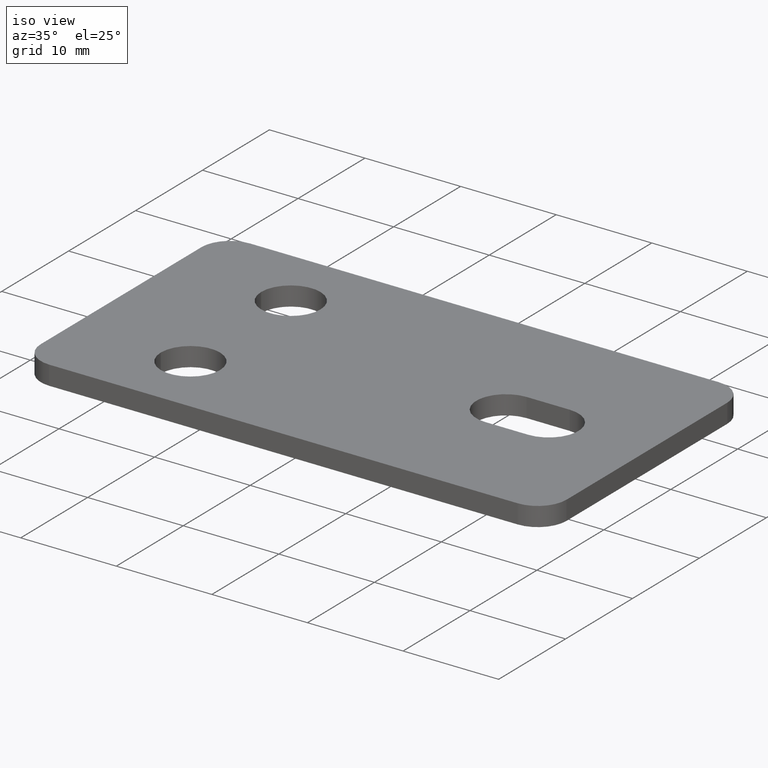
[diagram: clean part render]
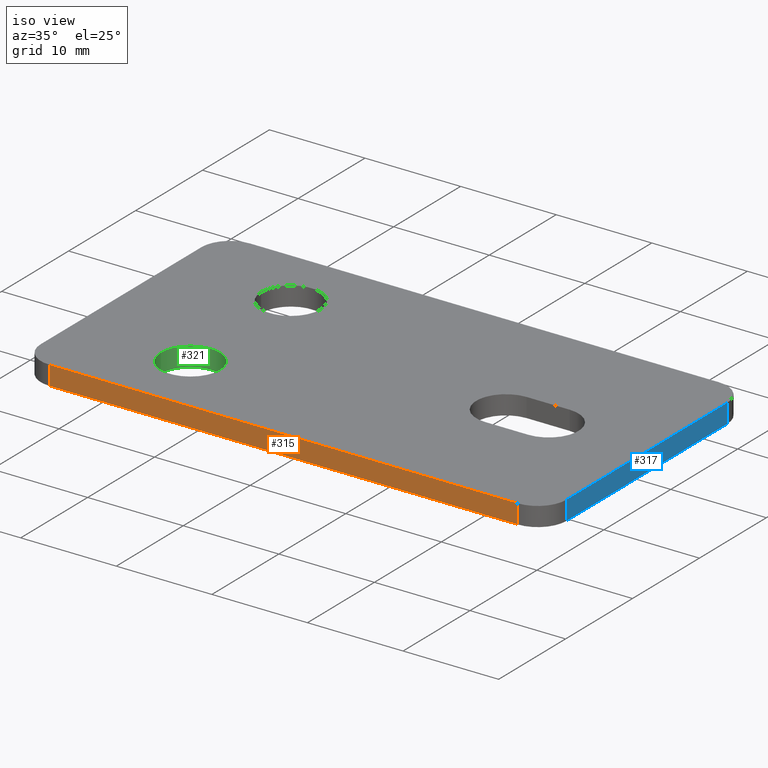
[diagram: same view with three faces highlighted in distinct colors, each labeled with its STEP entity id]
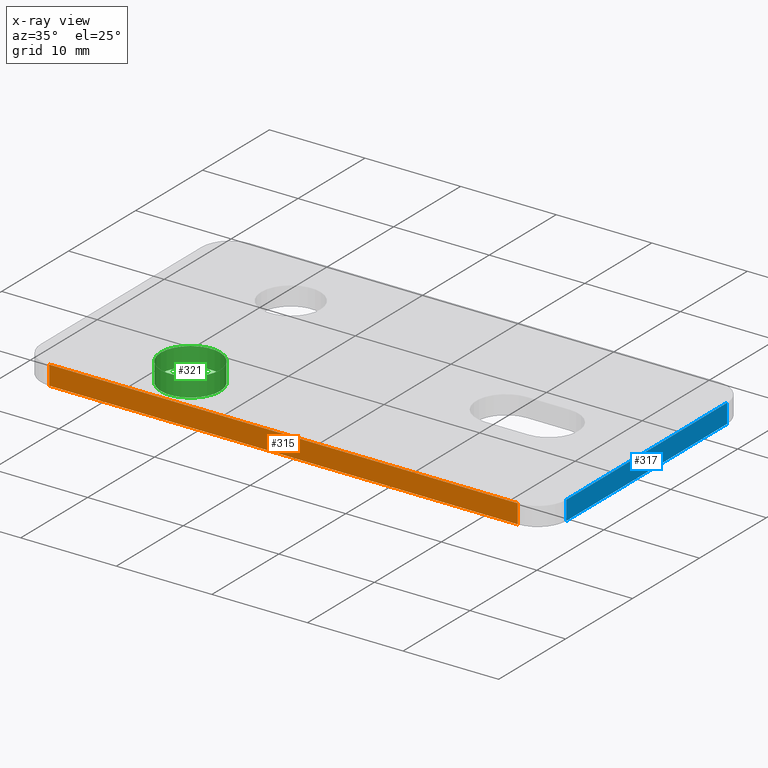
[diagram: x-ray of the same camera — body ghosted, the three highlighted faces saturated]
A machine part, iso view with three faces highlighted in distinct colors.
The next image is the same camera in x-ray (body ghosted, the three faces saturated) — at least one of them is partly hidden behind the body in this view.
Their STEP definitions:

[orange] entity #315 — the highlighted planar face has unit normal (-0, -1, 0).
#25=PLANE('',#363);
#37=FACE_OUTER_BOUND('',#56,.T.);
#56=EDGE_LOOP('',(#253,#254,#255,#256));
#82=LINE('',#523,#108);
#83=LINE('',#531,#109);
#84=LINE('',#535,#110);
#85=LINE('',#536,#111);
#108=VECTOR('',#424,10.);
#109=VECTOR('',#433,10.);
#110=VECTOR('',#438,10.);
#111=VECTOR('',#439,10.);
#154=VERTEX_POINT('',#520);
#155=VERTEX_POINT('',#522);
#158=VERTEX_POINT('',#530);
#159=VERTEX_POINT('',#534);
#190=EDGE_CURVE('',#154,#155,#82,.T.);
#194=EDGE_CURVE('',#155,#158,#83,.T.);
#196=EDGE_CURVE('',#159,#154,#84,.T.);
#197=EDGE_CURVE('',#158,#159,#85,.T.);
#253=ORIENTED_EDGE('',*,*,#194,.F.);
#254=ORIENTED_EDGE('',*,*,#190,.F.);
#255=ORIENTED_EDGE('',*,*,#196,.F.);
#256=ORIENTED_EDGE('',*,*,#197,.F.);
#315=ADVANCED_FACE('',(#37),#25,.T.);
#363=AXIS2_PLACEMENT_3D('',#533,#436,#437);
#424=DIRECTION('',(-1.,1.61486985400023E-16,0.));
#433=DIRECTION('',(0.,0.,1.));
#436=DIRECTION('center_axis',(-1.61486985400023E-16,-1.,0.));
#437=DIRECTION('ref_axis',(1.,-1.61486985400023E-16,0.));
#438=DIRECTION('',(0.,0.,-1.));
#439=DIRECTION('',(1.,-1.61486985400023E-16,0.));
#520=CARTESIAN_POINT('',(24.5,-15.,-1.));
#522=CARTESIAN_POINT('',(-24.5,-15.,-1.));
#523=CARTESIAN_POINT('',(27.5,-15.,-1.));
#530=CARTESIAN_POINT('',(-24.5,-15.,1.));
#531=CARTESIAN_POINT('',(-24.5,-15.,0.));
#533=CARTESIAN_POINT('Origin',(-27.5,-15.,0.));
#534=CARTESIAN_POINT('',(24.5,-15.,1.));
#535=CARTESIAN_POINT('',(24.5,-15.,0.));
#536=CARTESIAN_POINT('',(27.5,-15.,1.));

[blue] entity #317 — the highlighted planar face has unit normal (1, 0, 0).
#26=PLANE('',#366);
#39=FACE_OUTER_BOUND('',#58,.T.);
#58=EDGE_LOOP('',(#261,#262,#263,#264));
#81=LINE('',#519,#107);
#86=LINE('',#539,#112);
#87=LINE('',#543,#113);
#88=LINE('',#544,#114);
#107=VECTOR('',#421,10.);
#112=VECTOR('',#442,10.);
#113=VECTOR('',#447,10.);
#114=VECTOR('',#448,10.);
#152=VERTEX_POINT('',#516);
#153=VERTEX_POINT('',#518);
#160=VERTEX_POINT('',#538);
#161=VERTEX_POINT('',#542);
#188=EDGE_CURVE('',#152,#153,#81,.T.);
#198=EDGE_CURVE('',#153,#160,#86,.T.);
#200=EDGE_CURVE('',#161,#152,#87,.T.);
#201=EDGE_CURVE('',#160,#161,#88,.T.);
#261=ORIENTED_EDGE('',*,*,#198,.F.);
#262=ORIENTED_EDGE('',*,*,#188,.F.);
#263=ORIENTED_EDGE('',*,*,#200,.F.);
#264=ORIENTED_EDGE('',*,*,#201,.F.);
#317=ADVANCED_FACE('',(#39),#26,.T.);
#366=AXIS2_PLACEMENT_3D('',#541,#445,#446);
#421=DIRECTION('',(0.,-1.,0.));
#442=DIRECTION('',(0.,0.,1.));
#445=DIRECTION('center_axis',(1.,0.,0.));
#446=DIRECTION('ref_axis',(0.,1.,0.));
#447=DIRECTION('',(0.,0.,-1.));
#448=DIRECTION('',(0.,1.,0.));
#516=CARTESIAN_POINT('',(27.5,12.,-1.));
#518=CARTESIAN_POINT('',(27.5,-12.,-1.));
#519=CARTESIAN_POINT('',(27.5,15.,-1.));
#538=CARTESIAN_POINT('',(27.5,-12.,1.));
#539=CARTESIAN_POINT('',(27.5,-12.,0.));
#541=CARTESIAN_POINT('Origin',(27.5,-15.,0.));
#542=CARTESIAN_POINT('',(27.5,12.,1.));
#543=CARTESIAN_POINT('',(27.5,12.,0.));
#544=CARTESIAN_POINT('',(27.5,15.,1.));

[green] entity #321 — the highlighted cylindrical surface (bore or boss wall) has radius 3.1 mm, axis along (0, 0, 1).
#43=FACE_OUTER_BOUND('',#62,.T.);
#62=EDGE_LOOP('',(#278,#279,#280,#281,#282));
#92=LINE('',#562,#118);
#118=VECTOR('',#470,3.1);
#129=CIRCLE('',#360,3.1);
#135=CIRCLE('',#374,3.1);
#136=CIRCLE('',#375,3.1);
#157=VERTEX_POINT('',#527);
#165=VERTEX_POINT('',#558);
#166=VERTEX_POINT('',#559);
#193=EDGE_CURVE('',#157,#157,#129,.T.);
#208=EDGE_CURVE('',#165,#166,#135,.T.);
#209=EDGE_CURVE('',#166,#165,#136,.T.);
#210=EDGE_CURVE('',#166,#157,#92,.T.);
#278=ORIENTED_EDGE('',*,*,#208,.F.);
#279=ORIENTED_EDGE('',*,*,#209,.F.);
#280=ORIENTED_EDGE('',*,*,#210,.T.);
#281=ORIENTED_EDGE('',*,*,#193,.F.);
#282=ORIENTED_EDGE('',*,*,#210,.F.);
#306=CYLINDRICAL_SURFACE('',#373,3.1);
#321=ADVANCED_FACE('',(#43),#306,.F.);
#360=AXIS2_PLACEMENT_3D('',#528,#429,#430);
#373=AXIS2_PLACEMENT_3D('',#557,#464,#465);
#374=AXIS2_PLACEMENT_3D('',#560,#466,#467);
#375=AXIS2_PLACEMENT_3D('',#561,#468,#469);
#429=DIRECTION('center_axis',(0.,0.,1.));
#430=DIRECTION('ref_axis',(1.,0.,0.));
#464=DIRECTION('center_axis',(0.,0.,1.));
#465=DIRECTION('ref_axis',(1.,0.,0.));
#466=DIRECTION('center_axis',(0.,0.,-1.));
#467=DIRECTION('ref_axis',(1.,0.,0.));
#468=DIRECTION('center_axis',(0.,0.,-1.));
#469=DIRECTION('ref_axis',(1.,0.,0.));
#470=DIRECTION('',(0.,0.,-1.));
#527=CARTESIAN_POINT('',(-18.1,-7.49999999999999,-0.999999999999996));
#528=CARTESIAN_POINT('Origin',(-15.,-7.49999999999999,-0.999999999999996));
#557=CARTESIAN_POINT('Origin',(-15.,-7.49999999999999,-61.6817357768593));
#558=CARTESIAN_POINT('',(-11.9,-7.49999999999999,1.));
#559=CARTESIAN_POINT('',(-18.1,-7.49999999999999,0.999999999999996));
#560=CARTESIAN_POINT('Origin',(-15.,-7.49999999999999,0.999999999999996));
#561=CARTESIAN_POINT('Origin',(-15.,-7.49999999999999,0.999999999999996));
#562=CARTESIAN_POINT('',(-18.1,-7.49999999999999,-61.6817357768593));